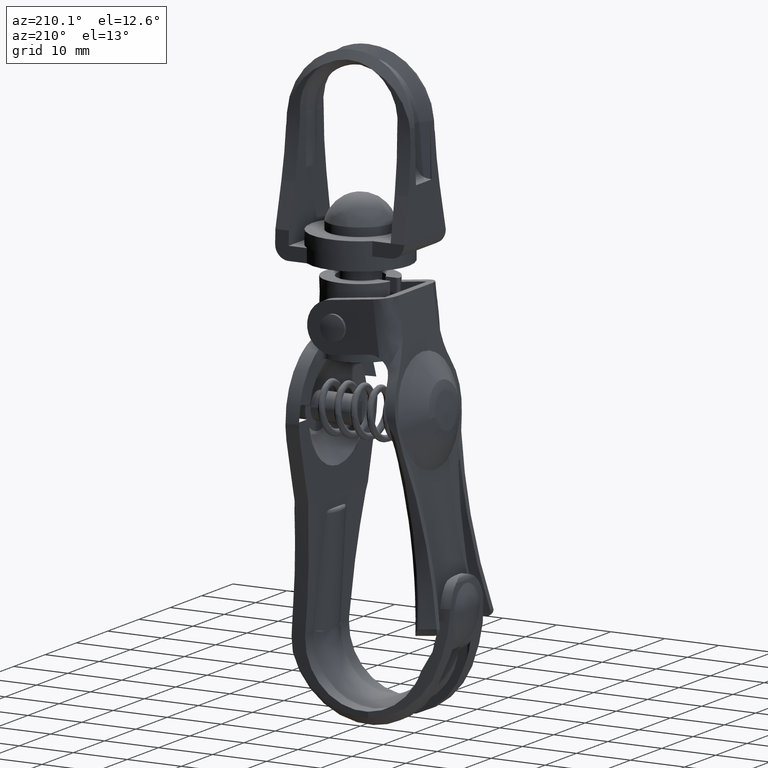
[diagram: clean part render]
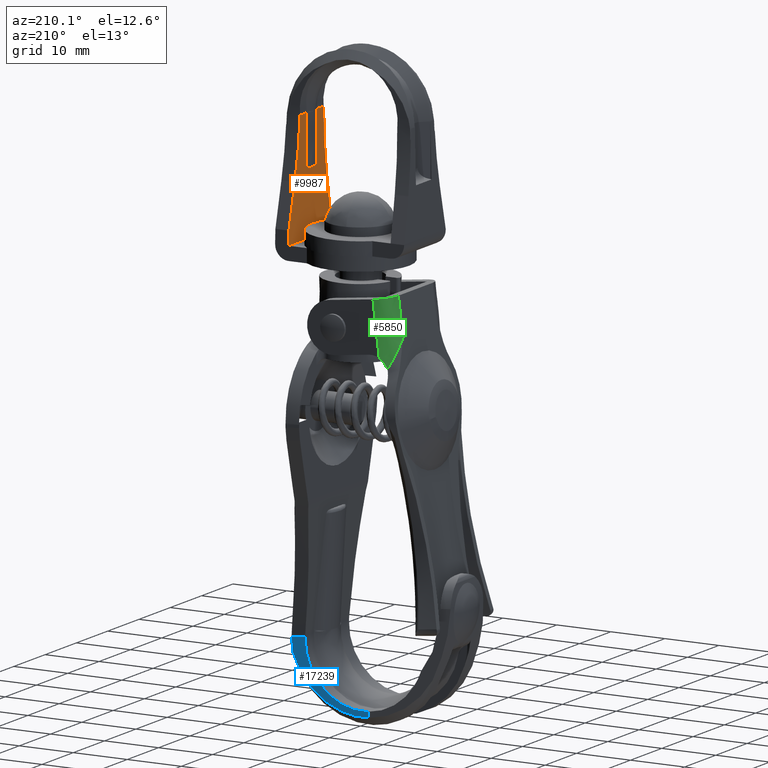
[diagram: same view with three faces highlighted in distinct colors, each labeled with its STEP entity id]
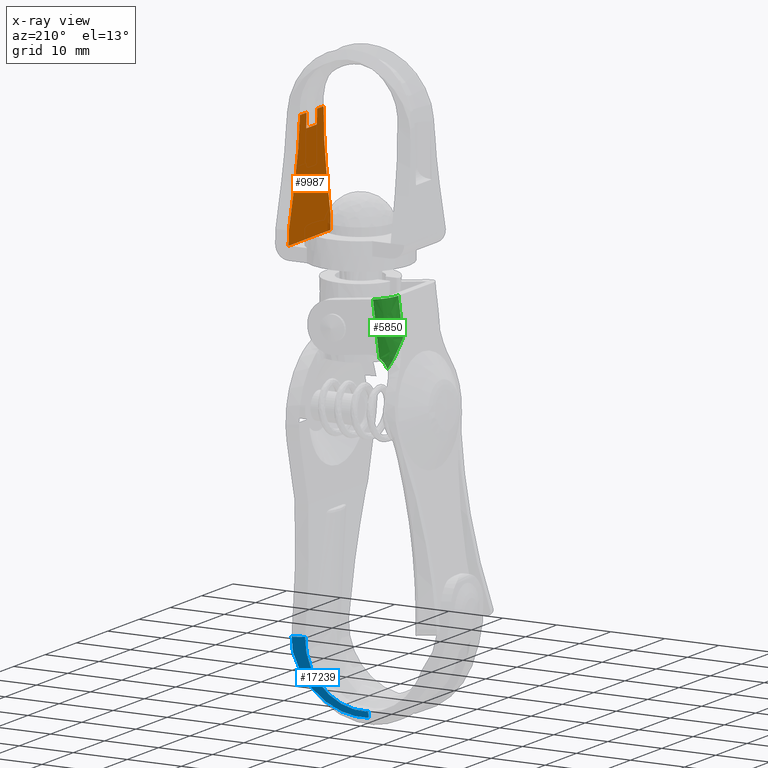
[diagram: x-ray of the same camera — body ghosted, the three highlighted faces saturated]
A machine part, auxiliary view with three faces highlighted in distinct colors.
The next image is the same camera in x-ray (body ghosted, the three faces saturated) — at least one of them is partly hidden behind the body in this view.
Their STEP definitions:

[orange] entity #9987 — the highlighted face is a freeform B-spline surface patch.
#8489=CARTESIAN_POINT('',(9.055595023724250,1.748527124214055,45.643452194383400));
#8490=VERTEX_POINT('',#8489);
#8497=CARTESIAN_POINT('',(9.055624002606820,-1.749544625836640,45.642090189698493));
#8498=VERTEX_POINT('',#8497);
#8504=CARTESIAN_POINT('',(9.000565000000110,-1.668904405015550,48.229858000000000));
#8505=VERTEX_POINT('',#8504);
#8506=CARTESIAN_POINT('',(9.055624002606816,-1.749544625836629,45.642090189698472));
#8507=CARTESIAN_POINT('',(9.027444902794803,-1.709668044047618,46.966505162081319));
#8508=CARTESIAN_POINT('',(9.000565000000110,-1.668904405015550,48.229858000000000));
#8516=(BOUNDED_CURVE()B_SPLINE_CURVE(2,(#8506,#8507,#8508),.UNSPECIFIED.,.F.,.U.)CURVE()GEOMETRIC_REPRESENTATION_ITEM()QUASI_UNIFORM_CURVE()RATIONAL_B_SPLINE_CURVE((1.0,0.999870242616229,1.0))REPRESENTATION_ITEM(''));
#8517=EDGE_CURVE('',#8498,#8505,#8516,.T.);
#8546=CARTESIAN_POINT('',(9.000565000000110,1.667927912477830,48.229858000000000));
#8547=VERTEX_POINT('',#8546);
#8553=CARTESIAN_POINT('',(9.000565000000103,1.667927912477835,48.229858000000029));
#8554=CARTESIAN_POINT('',(9.027431077641248,1.708670585527438,46.967154942964555));
#8555=CARTESIAN_POINT('',(9.055595023724242,1.748527124214079,45.643452194383428));
#8563=(BOUNDED_CURVE()B_SPLINE_CURVE(2,(#8553,#8554,#8555),.UNSPECIFIED.,.F.,.U.)CURVE()GEOMETRIC_REPRESENTATION_ITEM()QUASI_UNIFORM_CURVE()RATIONAL_B_SPLINE_CURVE((1.0,0.999870376031180,1.0))REPRESENTATION_ITEM(''));
#8564=EDGE_CURVE('',#8547,#8490,#8563,.T.);
#8625=CARTESIAN_POINT('',(9.055595023724250,1.748527124214055,45.643452194383400));
#8626=CARTESIAN_POINT('',(9.055624002606820,-1.749544625836640,45.642090189698493));
#8627=QUASI_UNIFORM_CURVE('',1,(#8625,#8626),.UNSPECIFIED.,.F.,.U.);
#8628=EDGE_CURVE('',#8490,#8498,#8627,.T.);
#9320=CARTESIAN_POINT('',(9.393031508951628,-6.657127000000079,29.783969945307899));
#9321=VERTEX_POINT('',#9320);
#9327=CARTESIAN_POINT('',(9.446243000000001,-6.657127000000000,27.283035000000101));
#9328=VERTEX_POINT('',#9327);
#9329=CARTESIAN_POINT('',(9.446243000000001,-6.657127000000000,27.283035000000101));
#9330=CARTESIAN_POINT('',(9.393031508951628,-6.657127000000079,29.783969945307899));
#9331=QUASI_UNIFORM_CURVE('',1,(#9329,#9330),.UNSPECIFIED.,.F.,.U.);
#9332=EDGE_CURVE('',#9328,#9321,#9331,.T.);
#9389=CARTESIAN_POINT('',(9.229910082029781,-5.020798562956230,37.450661272324950));
#9390=VERTEX_POINT('',#9389);
#9398=CARTESIAN_POINT('',(9.393031508951628,-6.657127000000079,29.783969945307899));
#9399=CARTESIAN_POINT('',(9.229910082029781,-5.020798562956230,37.450661272324950));
#9400=QUASI_UNIFORM_CURVE('',1,(#9398,#9399),.UNSPECIFIED.,.F.,.U.);
#9401=EDGE_CURVE('',#9321,#9390,#9400,.T.);
#9489=CARTESIAN_POINT('',(9.000561186369971,-3.768853623504615,48.229858422209297));
#9490=VERTEX_POINT('',#9489);
#9498=CARTESIAN_POINT('',(9.000561186369971,-3.768853623504615,48.229858422209297));
#9499=CARTESIAN_POINT('',(9.077606115719084,-3.859387489306685,44.608813619287147));
#9500=CARTESIAN_POINT('',(9.154473579900362,-4.279096497675543,40.996110151114458));
#9501=CARTESIAN_POINT('',(9.229910082029781,-5.020798562956230,37.450661272324950));
#9502=B_SPLINE_CURVE_WITH_KNOTS('',3,(#9498,#9499,#9500,#9501),.UNSPECIFIED.,.F.,.U.,(4,4),(1.333666E-009,10.868936441463580),.UNSPECIFIED.);
#9503=EDGE_CURVE('',#9490,#9390,#9502,.T.);
#9609=CARTESIAN_POINT('',(9.446243000000001,6.657329273593190,27.283035000000101));
#9610=VERTEX_POINT('',#9609);
#9616=CARTESIAN_POINT('',(9.393051401445780,6.657329273593210,29.783035000000101));
#9617=VERTEX_POINT('',#9616);
#9618=CARTESIAN_POINT('',(9.393051401445780,6.657329273593210,29.783035000000101));
#9619=CARTESIAN_POINT('',(9.446243000000001,6.657329273593190,27.283035000000101));
#9620=QUASI_UNIFORM_CURVE('',1,(#9618,#9619),.UNSPECIFIED.,.F.,.U.);
#9621=EDGE_CURVE('',#9617,#9610,#9620,.T.);
#9698=CARTESIAN_POINT('',(9.229910191074499,5.020805634883409,37.450656147235549));
#9699=VERTEX_POINT('',#9698);
#9700=CARTESIAN_POINT('',(9.229910191074499,5.020805634883409,37.450656147235549));
#9701=CARTESIAN_POINT('',(9.393051401445780,6.657329273593210,29.783035000000101));
#9702=QUASI_UNIFORM_CURVE('',1,(#9700,#9701),.UNSPECIFIED.,.F.,.U.);
#9703=EDGE_CURVE('',#9699,#9617,#9702,.T.);
#9755=CARTESIAN_POINT('',(9.446243000000001,6.657329273593190,27.283035000000101));
#9756=CARTESIAN_POINT('',(9.446243000000001,-6.657127000000000,27.283035000000101));
#9757=QUASI_UNIFORM_CURVE('',1,(#9755,#9756),.UNSPECIFIED.,.F.,.U.);
#9758=EDGE_CURVE('',#9610,#9328,#9757,.T.);
#9952=CARTESIAN_POINT('',(8.978303375116726,-7.322184017491475,49.276152221667957));
#9953=CARTESIAN_POINT('',(9.468504594255252,-7.322184017491475,26.236742217850878));
#9954=CARTESIAN_POINT('',(8.978303375116726,7.322385695882029,49.276152221667957));
#9955=CARTESIAN_POINT('',(9.468504594255252,7.322385695882029,26.236742217850878));
#9956=B_SPLINE_SURFACE_WITH_KNOTS('',1,1,((#9952,#9954),(#9953,#9955)),.UNSPECIFIED.,.F.,.F.,.U.,(2,2),(2,2),(0.0,23.044624331050230),(0.0,14.644569713373500),.UNSPECIFIED.);
#9957=ORIENTED_EDGE('',*,*,#8564,.F.);
#9958=CARTESIAN_POINT('',(9.000565000000110,3.768859634092735,48.229858000000000));
#9959=VERTEX_POINT('',#9958);
#9960=CARTESIAN_POINT('',(9.000565000000110,3.768859634092735,48.229858000000000));
#9961=CARTESIAN_POINT('',(9.000565000000110,1.667927912477830,48.229858000000000));
#9962=QUASI_UNIFORM_CURVE('',1,(#9960,#9961),.UNSPECIFIED.,.F.,.U.);
#9963=EDGE_CURVE('',#9959,#8547,#9962,.T.);
#9964=ORIENTED_EDGE('',*,*,#9963,.F.);
#9965=CARTESIAN_POINT('',(9.229910191074499,5.020805634883409,37.450656147235549));
#9966=CARTESIAN_POINT('',(9.154475011508387,4.279059177337339,40.996102308687078));
#9967=CARTESIAN_POINT('',(9.077608617378100,3.859419726000952,44.608815416569243));
#9968=CARTESIAN_POINT('',(9.000565000000110,3.768859634092735,48.229858000000000));
#9969=B_SPLINE_CURVE_WITH_KNOTS('',3,(#9965,#9966,#9967,#9968),.UNSPECIFIED.,.F.,.U.,(4,4),(1.334822E-009,10.868941175886160),.UNSPECIFIED.);
#9970=EDGE_CURVE('',#9699,#9959,#9969,.T.);
#9971=ORIENTED_EDGE('',*,*,#9970,.F.);
#9972=ORIENTED_EDGE('',*,*,#9703,.T.);
#9973=ORIENTED_EDGE('',*,*,#9621,.T.);
#9974=ORIENTED_EDGE('',*,*,#9758,.T.);
#9975=ORIENTED_EDGE('',*,*,#9332,.T.);
#9976=ORIENTED_EDGE('',*,*,#9401,.T.);
#9977=ORIENTED_EDGE('',*,*,#9503,.F.);
#9978=CARTESIAN_POINT('',(9.000565000000110,-1.668904405015550,48.229858000000000));
#9979=CARTESIAN_POINT('',(9.000561186369971,-3.768853623504615,48.229858422209297));
#9980=QUASI_UNIFORM_CURVE('',1,(#9978,#9979),.UNSPECIFIED.,.F.,.U.);
#9981=EDGE_CURVE('',#8505,#9490,#9980,.T.);
#9982=ORIENTED_EDGE('',*,*,#9981,.F.);
#9983=ORIENTED_EDGE('',*,*,#8517,.F.);
#9984=ORIENTED_EDGE('',*,*,#8628,.F.);
#9985=EDGE_LOOP('',(#9957,#9964,#9971,#9972,#9973,#9974,#9975,#9976,#9977,#9982,#9983,#9984));
#9986=FACE_OUTER_BOUND('',#9985,.T.);
#9987=ADVANCED_FACE('',(#9986),#9956,.F.);

[blue] entity #17239 — the highlighted face is a freeform B-spline surface patch.
#13428=CARTESIAN_POINT('',(13.182743349630300,7.0,-38.300298333333352));
#13429=VERTEX_POINT('',#13428);
#13501=CARTESIAN_POINT('',(0.0,7.0,-48.716965000000002));
#13502=VERTEX_POINT('',#13501);
#13516=CARTESIAN_POINT('',(13.182743349630300,7.0,-38.300298333333352));
#13517=CARTESIAN_POINT('',(12.877763208802939,6.999999999999990,-39.586132107805703));
#13518=CARTESIAN_POINT('',(12.169842834452430,7.000000000000016,-41.357844778385193));
#13519=CARTESIAN_POINT('',(10.778203240709329,6.999999999999976,-43.442175011472543));
#13520=CARTESIAN_POINT('',(9.344866244679054,7.000000000000051,-45.079306458922652));
#13521=CARTESIAN_POINT('',(7.527074739575850,6.999999999999915,-46.531109958286237));
#13522=CARTESIAN_POINT('',(5.266565295468864,7.000000000000083,-47.724794891500167));
#13523=CARTESIAN_POINT('',(2.831543080925608,6.999999999999973,-48.514124465849591));
#13524=CARTESIAN_POINT('',(0.991073347151881,7.000000000000004,-48.717145154214322));
#13525=CARTESIAN_POINT('',(0.0,7.0,-48.716965000000002));
#13526=B_SPLINE_CURVE_WITH_KNOTS('',3,(#13516,#13517,#13518,#13519,#13520,#13521,#13522,#13523,#13524,#13525),.UNSPECIFIED.,.F.,.U.,(4,1,1,1,1,1,1,4),(0.000000155669824,3.964277374235008,5.663275300117833,7.503836056174603,10.476972576040501,12.600741999857741,15.149237357446211,18.122420389773861),.UNSPECIFIED.);
#13527=EDGE_CURVE('',#13429,#13502,#13526,.T.);
#15630=CARTESIAN_POINT('',(0.0,7.0,-47.716976194789297));
#15631=VERTEX_POINT('',#15630);
#15632=CARTESIAN_POINT('',(0.0,7.0,-48.716965000000002));
#15633=CARTESIAN_POINT('',(0.0,7.0,-47.716976194789297));
#15634=QUASI_UNIFORM_CURVE('',1,(#15632,#15633),.UNSPECIFIED.,.F.,.U.);
#15635=EDGE_CURVE('',#13502,#15631,#15634,.T.);
#16180=CARTESIAN_POINT('',(10.683986607176100,7.0,-35.777343999999900));
#16181=VERTEX_POINT('',#16180);
#16244=CARTESIAN_POINT('',(13.196488240299340,7.0,-35.777343999999900));
#16245=VERTEX_POINT('',#16244);
#16253=CARTESIAN_POINT('',(10.683986607176100,7.0,-35.777343999999900));
#16254=CARTESIAN_POINT('',(13.196488240299340,7.0,-35.777343999999900));
#16255=QUASI_UNIFORM_CURVE('',1,(#16253,#16254),.UNSPECIFIED.,.F.,.U.);
#16256=EDGE_CURVE('',#16181,#16245,#16255,.T.);
#16772=CARTESIAN_POINT('',(10.683986607176100,7.0,-35.777343999999900));
#16773=CARTESIAN_POINT('',(10.814908224250150,6.999999999999989,-36.947094898279730));
#16774=CARTESIAN_POINT('',(10.706938823685769,7.000000000000025,-38.948128697995557));
#16775=CARTESIAN_POINT('',(9.818377946249772,6.999999999999957,-41.548227192760898));
#16776=CARTESIAN_POINT('',(8.761250426834378,7.000000000000089,-43.287751773783590));
#16777=CARTESIAN_POINT('',(7.459373228408119,6.999999999999892,-44.781672273605160));
#16778=CARTESIAN_POINT('',(6.100992558702562,7.000000000000144,-45.887327183886448));
#16779=CARTESIAN_POINT('',(4.242878071058160,6.999999999999886,-46.916607251651449));
#16780=CARTESIAN_POINT('',(2.259776658637237,7.000000000000017,-47.563439106549872));
#16781=CARTESIAN_POINT('',(0.706170133856165,7.000000000000002,-47.717049161289651));
#16782=CARTESIAN_POINT('',(0.0,7.0,-47.716976194789297));
#16783=B_SPLINE_CURVE_WITH_KNOTS('',3,(#16772,#16773,#16774,#16775,#16776,#16777,#16778,#16779,#16780,#16781,#16782),.UNSPECIFIED.,.F.,.U.,(4,1,1,1,1,1,1,1,4),(0.000000262497913,3.530910220286891,5.931940738725274,8.191791857237917,9.604066702443445,11.863831614456030,13.417467904619119,15.959744810382460,18.078275260441981),.UNSPECIFIED.);
#16784=EDGE_CURVE('',#16181,#15631,#16783,.T.);
#17221=CARTESIAN_POINT('',(-0.661837153201784,7.0,-49.363298800934700));
#17222=CARTESIAN_POINT('',(-0.661837153201784,7.0,-35.131009620619061));
#17223=CARTESIAN_POINT('',(13.911831079815530,7.0,-49.363298800934700));
#17224=CARTESIAN_POINT('',(13.911831079815530,7.0,-35.131009620619061));
#17225=B_SPLINE_SURFACE_WITH_KNOTS('',1,1,((#17221,#17223),(#17222,#17224)),.UNSPECIFIED.,.F.,.F.,.U.,(2,2),(2,2),(0.0,14.232289180315639),(0.0,14.573668233017321),.UNSPECIFIED.);
#17226=CARTESIAN_POINT('',(13.196488240299340,7.0,-35.777343999999900));
#17227=CARTESIAN_POINT('',(13.272177894636920,7.000000000000024,-36.616215050675343));
#17228=CARTESIAN_POINT('',(13.267552620168621,6.999999999999985,-37.462302677576758));
#17229=CARTESIAN_POINT('',(13.182743349630300,7.0,-38.300298333333352));
#17230=B_SPLINE_CURVE_WITH_KNOTS('',3,(#17226,#17227,#17228,#17229),.UNSPECIFIED.,.F.,.U.,(4,4),(3.210071E-009,2.526833936700039),.UNSPECIFIED.);
#17231=EDGE_CURVE('',#16245,#13429,#17230,.T.);
#17232=ORIENTED_EDGE('',*,*,#17231,.T.);
#17233=ORIENTED_EDGE('',*,*,#13527,.T.);
#17234=ORIENTED_EDGE('',*,*,#15635,.T.);
#17235=ORIENTED_EDGE('',*,*,#16784,.F.);
#17236=ORIENTED_EDGE('',*,*,#16256,.T.);
#17237=EDGE_LOOP('',(#17232,#17233,#17234,#17235,#17236));
#17238=FACE_OUTER_BOUND('',#17237,.T.);
#17239=ADVANCED_FACE('',(#17238),#17225,.T.);

[green] entity #5850 — the highlighted face is a freeform B-spline surface patch.
#5633=CARTESIAN_POINT('',(-10.841289999799759,5.500002000000000,12.865646113720020));
#5634=VERTEX_POINT('',#5633);
#5660=CARTESIAN_POINT('',(-8.994920317809820,8.269322690957999,8.308456683711420));
#5661=VERTEX_POINT('',#5660);
#5662=CARTESIAN_POINT('',(-8.994920317809790,8.269322690958010,8.308456683711409));
#5663=CARTESIAN_POINT('',(-9.070426484645042,8.237868694480724,8.397809652591192));
#5664=CARTESIAN_POINT('',(-9.141650057841231,8.204599216458050,8.489992669335603));
#5665=CARTESIAN_POINT('',(-9.277000798941922,8.135247128076101,8.676845706757668));
#5666=CARTESIAN_POINT('',(-9.341271921590295,8.099092168778288,8.771728796700300));
#5667=CARTESIAN_POINT('',(-9.526258680916696,7.986313007940988,9.059349432422065));
#5668=CARTESIAN_POINT('',(-9.639283519243415,7.905404598417138,9.254988293665690));
#5669=CARTESIAN_POINT('',(-9.850891711718145,7.731647876004527,9.650105920452049));
#5670=CARTESIAN_POINT('',(-9.949526648163277,7.638604379754565,9.850005324003476));
#5671=CARTESIAN_POINT('',(-10.087403658991590,7.489862272994234,10.149553435738280));
#5672=CARTESIAN_POINT('',(-10.131681596957449,7.438741503269820,10.249384837416970));
#5673=CARTESIAN_POINT('',(-10.216998644876730,7.333199469880443,10.448844641457621));
#5674=CARTESIAN_POINT('',(-10.258012776247179,7.278799070718348,10.548425387067040));
#5675=CARTESIAN_POINT('',(-10.375723597690181,7.111001170038853,10.845356787260870));
#5676=CARTESIAN_POINT('',(-10.447321406229470,6.992821663917404,11.041312146782390));
#5677=CARTESIAN_POINT('',(-10.575934704342060,6.741625364871665,11.428018416708330));
#5678=CARTESIAN_POINT('',(-10.632969812761980,6.608631251151984,11.618778142512630));
#5679=CARTESIAN_POINT('',(-10.705514915135240,6.395462430741790,11.899979909363340));
#5680=CARTESIAN_POINT('',(-10.727512192250060,6.322115264687020,11.992888644725809));
#5681=CARTESIAN_POINT('',(-10.766518655845410,6.170215454069942,12.176838988703389));
#5682=CARTESIAN_POINT('',(-10.783457154156521,6.091875137527106,12.267601560216120));
#5683=CARTESIAN_POINT('',(-10.825200354526720,5.850607897487494,12.533899869376031));
#5684=CARTESIAN_POINT('',(-10.841289999799759,5.680902951095480,12.704242991809130));
#5685=CARTESIAN_POINT('',(-10.841289999799759,5.500002000000001,12.865646113720020));
#5686=B_SPLINE_CURVE_WITH_KNOTS('',3,(#5662,#5663,#5664,#5665,#5666,#5667,#5668,#5669,#5670,#5671,#5672,#5673,#5674,#5675,#5676,#5677,#5678,#5679,#5680,#5681,#5682,#5683,#5684,#5685),.UNSPECIFIED.,.F.,.U.,(4,2,2,2,2,2,2,2,2,2,2,4),(0.0,0.062500000000000,0.124999999999999,0.249999999999999,0.375000000000000,0.437500000000000,0.500000000000000,0.625000000000000,0.750000000000000,0.812500000000000,0.875000000000000,1.0),.UNSPECIFIED.);
#5687=EDGE_CURVE('',#5661,#5634,#5686,.T.);
#5789=CARTESIAN_POINT('',(-7.742630332809519,8.498379272810972,20.069899457907319));
#5790=CARTESIAN_POINT('',(-7.742630332809519,8.498379272810972,8.014420614356522));
#5791=CARTESIAN_POINT('',(-11.014784940041027,8.606047406110097,20.069899457907315));
#5792=CARTESIAN_POINT('',(-11.014784940041027,8.606047406110097,8.014420614356522));
#5793=CARTESIAN_POINT('',(-10.836856298408620,5.336960438921651,20.069899457907319));
#5794=CARTESIAN_POINT('',(-10.836856298408620,5.336960438921651,8.014420614356522));
#5802=(BOUNDED_SURFACE()B_SPLINE_SURFACE(1,2,((#5789,#5791,#5793),(#5790,#5792,#5794)),.UNSPECIFIED.,.F.,.F.,.U.)B_SPLINE_SURFACE_WITH_KNOTS((2,2),(3,3),(0.0,12.055478843550800),(0.0,5.280126370701992),.UNSPECIFIED.)GEOMETRIC_REPRESENTATION_ITEM()RATIONAL_B_SPLINE_SURFACE(((1.0,0.675590207615661,1.0),(1.0,0.675590207615661,1.0)))REPRESENTATION_ITEM('')SURFACE());
#5803=CARTESIAN_POINT('',(-7.841289999799771,8.500002000000000,10.183035000150200));
#5804=VERTEX_POINT('',#5803);
#5805=CARTESIAN_POINT('',(-8.994920317809816,8.269322690957992,8.308456683711418));
#5806=CARTESIAN_POINT('',(-8.978526389897922,8.276151994740754,8.400614285899700));
#5807=CARTESIAN_POINT('',(-8.957838637696071,8.284609929917481,8.491954854378221));
#5808=CARTESIAN_POINT('',(-8.907775387245090,8.304165173303755,8.673026483492311));
#5809=CARTESIAN_POINT('',(-8.878206639215938,8.315328684052746,8.763206832067917));
#5810=CARTESIAN_POINT('',(-8.777832807158548,8.350954365462227,9.026684796988143));
#5811=CARTESIAN_POINT('',(-8.695505325006355,8.377587503354400,9.193697139103165));
#5812=CARTESIAN_POINT('',(-8.549037657413201,8.415758984193985,9.432249465219083));
#5813=CARTESIAN_POINT('',(-8.496355536289585,8.428182337387613,9.509757102604832));
#5814=CARTESIAN_POINT('',(-8.382906910905952,8.451273262856724,9.660732060140493));
#5815=CARTESIAN_POINT('',(-8.322727163555834,8.461808573356183,9.733386295881349));
#5816=CARTESIAN_POINT('',(-8.132975248687568,8.488519926676492,9.941774367043241));
#5817=CARTESIAN_POINT('',(-7.993855887370089,8.500002000000000,10.068610584492340));
#5818=CARTESIAN_POINT('',(-7.841289999799771,8.500002000000000,10.183035000150200));
#5819=B_SPLINE_CURVE_WITH_KNOTS('',3,(#5805,#5806,#5807,#5808,#5809,#5810,#5811,#5812,#5813,#5814,#5815,#5816,#5817,#5818),.UNSPECIFIED.,.F.,.U.,(4,2,2,2,2,2,4),(0.0,0.125000000000000,0.250000000000000,0.500000000000001,0.625000000000000,0.750000000000000,1.0),.UNSPECIFIED.);
#5820=EDGE_CURVE('',#5661,#5804,#5819,.T.);
#5821=ORIENTED_EDGE('',*,*,#5820,.F.);
#5822=ORIENTED_EDGE('',*,*,#5687,.T.);
#5823=CARTESIAN_POINT('',(-10.841289999799759,5.500002000000000,19.783035000000101));
#5824=VERTEX_POINT('',#5823);
#5825=CARTESIAN_POINT('',(-10.841289999799759,5.500002000000000,19.783035000000101));
#5826=CARTESIAN_POINT('',(-10.841289999799759,5.500002000000000,12.865646113720020));
#5827=QUASI_UNIFORM_CURVE('',1,(#5825,#5826),.UNSPECIFIED.,.F.,.U.);
#5828=EDGE_CURVE('',#5824,#5634,#5827,.T.);
#5829=ORIENTED_EDGE('',*,*,#5828,.F.);
#5830=CARTESIAN_POINT('',(-7.841289999799771,8.500002000000000,19.783035000000101));
#5831=VERTEX_POINT('',#5830);
#5832=CARTESIAN_POINT('',(-7.841289999799771,8.500002000000000,19.783035000000101));
#5833=CARTESIAN_POINT('',(-8.184936443881522,8.500252446749471,19.783035000000101));
#5834=CARTESIAN_POINT('',(-8.749243109050713,8.401862223924979,19.783035000000080));
#5835=CARTESIAN_POINT('',(-9.592722222449099,7.990475748836753,19.783035000000151));
#5836=CARTESIAN_POINT('',(-10.251019390680311,7.378899254764137,19.783035000000002));
#5837=CARTESIAN_POINT('',(-10.730426248267531,6.481613263023685,19.783035000000229));
#5838=CARTESIAN_POINT('',(-10.841525905214100,5.843648025026916,19.783035000000041));
#5839=CARTESIAN_POINT('',(-10.841289999799759,5.500002000000000,19.783035000000101));
#5840=B_SPLINE_CURVE_WITH_KNOTS('',3,(#5832,#5833,#5834,#5835,#5836,#5837,#5838,#5839),.UNSPECIFIED.,.F.,.U.,(4,1,1,1,1,4),(0.000000430708921,1.030858488481447,1.693596195284307,2.798001363436143,3.681649175272233,4.712507233044763),.UNSPECIFIED.);
#5841=EDGE_CURVE('',#5831,#5824,#5840,.T.);
#5842=ORIENTED_EDGE('',*,*,#5841,.F.);
#5843=CARTESIAN_POINT('',(-7.841289999799771,8.500002000000000,10.183035000150200));
#5844=CARTESIAN_POINT('',(-7.841289999799771,8.500002000000000,19.783035000000101));
#5845=QUASI_UNIFORM_CURVE('',1,(#5843,#5844),.UNSPECIFIED.,.F.,.U.);
#5846=EDGE_CURVE('',#5804,#5831,#5845,.T.);
#5847=ORIENTED_EDGE('',*,*,#5846,.F.);
#5848=EDGE_LOOP('',(#5821,#5822,#5829,#5842,#5847));
#5849=FACE_OUTER_BOUND('',#5848,.T.);
#5850=ADVANCED_FACE('',(#5849),#5802,.T.);